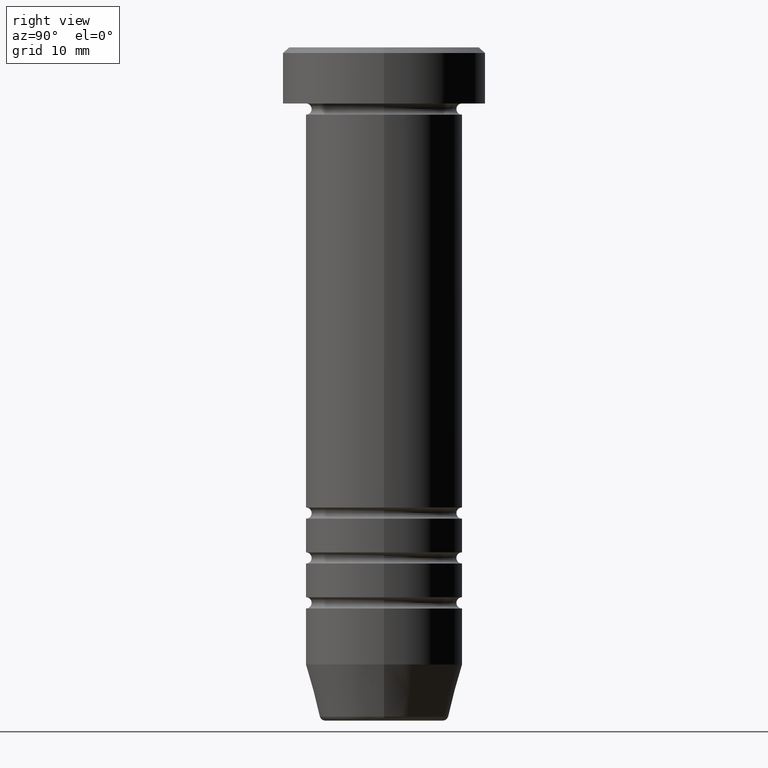
[diagram: clean part render]
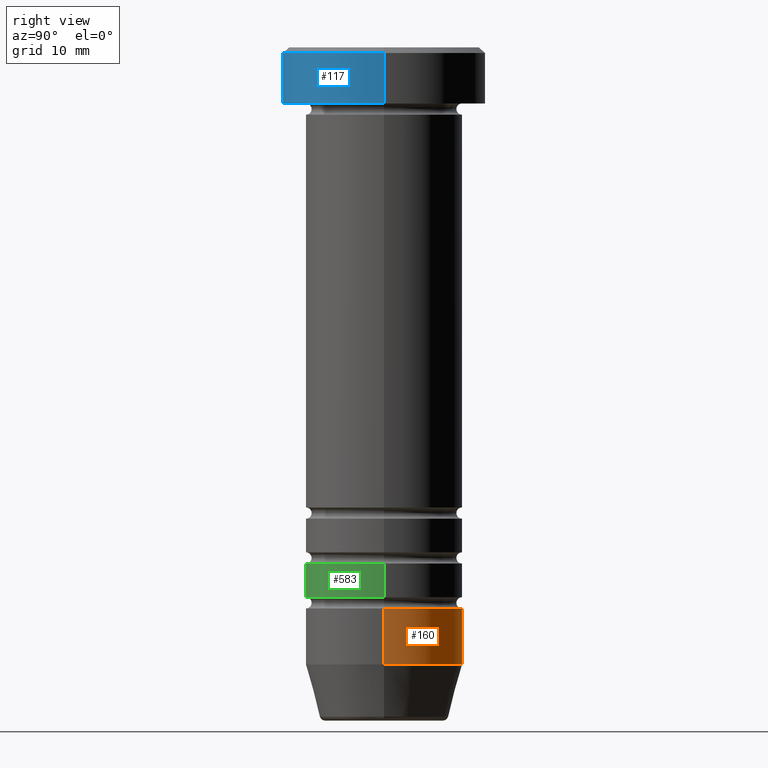
[diagram: same view with three faces highlighted in distinct colors, each labeled with its STEP entity id]
A machine part, right view with three faces highlighted in distinct colors.
Their STEP definitions:

[orange] entity #160 — the highlighted cylindrical surface (partial cylindrical patch) has radius 7 mm, axis along (-0, -0, 1).
#2 = ORIENTED_EDGE ( 'NONE', *, *, #955, .T. ) ;
#10 = EDGE_CURVE ( 'NONE', #786, #341, #89, .T. ) ;
#81 = DIRECTION ( 'NONE',  ( -0.000000000000000000, -0.000000000000000000, 1.000000000000000000 ) ) ;
#87 = CARTESIAN_POINT ( 'NONE',  ( 0.000000000000000000, 0.000000000000000000, -50.00000000000000000 ) ) ;
#89 = CIRCLE ( 'NONE', #824, 7.000000000000000000 ) ;
#93 = EDGE_CURVE ( 'NONE', #786, #680, #395, .T. ) ;
#160 = ADVANCED_FACE ( 'NONE', ( #636 ), #550, .T. ) ;
#171 = LINE ( 'NONE', #1043, #974 ) ;
#267 = VERTEX_POINT ( 'NONE', #434 ) ;
#341 = VERTEX_POINT ( 'NONE', #362 ) ;
#359 = VECTOR ( 'NONE', #966, 1000.000000000000000 ) ;
#362 = CARTESIAN_POINT ( 'NONE',  ( -7.000000000000000000, 8.572527594031473190E-16, -54.99999999999999289 ) ) ;
#377 = CIRCLE ( 'NONE', #864, 7.000000000000000000 ) ;
#395 = LINE ( 'NONE', #813, #359 ) ;
#403 = DIRECTION ( 'NONE',  ( -0.000000000000000000, -0.000000000000000000, 1.000000000000000000 ) ) ;
#434 = CARTESIAN_POINT ( 'NONE',  ( -7.000000000000000000, 8.572527594031473190E-16, -50.00000000000000000 ) ) ;
#457 = EDGE_LOOP ( 'NONE', ( #712, #2, #878, #1009 ) ) ;
#461 = CARTESIAN_POINT ( 'NONE',  ( 7.000000000000000000, 0.000000000000000000, -54.99999999999999289 ) ) ;
#550 = CYLINDRICAL_SURFACE ( 'NONE', #742, 7.000000000000000000 ) ;
#581 = DIRECTION ( 'NONE',  ( -0.000000000000000000, -0.000000000000000000, 1.000000000000000000 ) ) ;
#586 = DIRECTION ( 'NONE',  ( 1.000000000000000000, 0.000000000000000000, 0.000000000000000000 ) ) ;
#636 = FACE_OUTER_BOUND ( 'NONE', #457, .T. ) ;
#680 = VERTEX_POINT ( 'NONE', #990 ) ;
#712 = ORIENTED_EDGE ( 'NONE', *, *, #10, .T. ) ;
#742 = AXIS2_PLACEMENT_3D ( 'NONE', #746, #910, #586 ) ;
#746 = CARTESIAN_POINT ( 'NONE',  ( 0.000000000000000000, 0.000000000000000000, 0.000000000000000000 ) ) ;
#786 = VERTEX_POINT ( 'NONE', #461 ) ;
#813 = CARTESIAN_POINT ( 'NONE',  ( 7.000000000000000000, 0.000000000000000000, 0.000000000000000000 ) ) ;
#824 = AXIS2_PLACEMENT_3D ( 'NONE', #911, #581, #1045 ) ;
#864 = AXIS2_PLACEMENT_3D ( 'NONE', #87, #81, #968 ) ;
#878 = ORIENTED_EDGE ( 'NONE', *, *, #930, .F. ) ;
#910 = DIRECTION ( 'NONE',  ( -0.000000000000000000, -0.000000000000000000, 1.000000000000000000 ) ) ;
#911 = CARTESIAN_POINT ( 'NONE',  ( 0.000000000000000000, 0.000000000000000000, -54.99999999999999289 ) ) ;
#930 = EDGE_CURVE ( 'NONE', #680, #267, #377, .T. ) ;
#955 = EDGE_CURVE ( 'NONE', #341, #267, #171, .T. ) ;
#966 = DIRECTION ( 'NONE',  ( -0.000000000000000000, -0.000000000000000000, 1.000000000000000000 ) ) ;
#968 = DIRECTION ( 'NONE',  ( 1.000000000000000000, 0.000000000000000000, 0.000000000000000000 ) ) ;
#974 = VECTOR ( 'NONE', #403, 1000.000000000000000 ) ;
#990 = CARTESIAN_POINT ( 'NONE',  ( 7.000000000000000000, 0.000000000000000000, -50.00000000000000000 ) ) ;
#1009 = ORIENTED_EDGE ( 'NONE', *, *, #93, .F. ) ;
#1043 = CARTESIAN_POINT ( 'NONE',  ( -7.000000000000000000, 8.572527594031473190E-16, 0.000000000000000000 ) ) ;
#1045 = DIRECTION ( 'NONE',  ( 1.000000000000000000, 0.000000000000000000, 0.000000000000000000 ) ) ;

[blue] entity #117 — the highlighted cylindrical surface (partial cylindrical patch) has radius 9 mm, axis along (-0, -0, 1).
#1 = CARTESIAN_POINT ( 'NONE',  ( 0.000000000000000000, 0.000000000000000000, -0.5000000000000056621 ) ) ;
#51 = ORIENTED_EDGE ( 'NONE', *, *, #353, .T. ) ;
#117 = ADVANCED_FACE ( 'NONE', ( #983 ), #733, .T. ) ;
#207 = EDGE_LOOP ( 'NONE', ( #1017, #675, #51, #839 ) ) ;
#244 = AXIS2_PLACEMENT_3D ( 'NONE', #608, #941, #882 ) ;
#245 = DIRECTION ( 'NONE',  ( -0.000000000000000000, -0.000000000000000000, 1.000000000000000000 ) ) ;
#325 = DIRECTION ( 'NONE',  ( 1.000000000000000000, 0.000000000000000000, 0.000000000000000000 ) ) ;
#328 = AXIS2_PLACEMENT_3D ( 'NONE', #970, #245, #562 ) ;
#353 = EDGE_CURVE ( 'NONE', #556, #875, #1010, .T. ) ;
#433 = EDGE_CURVE ( 'NONE', #875, #1030, #773, .T. ) ;
#451 = LINE ( 'NONE', #571, #1040 ) ;
#500 = CARTESIAN_POINT ( 'NONE',  ( 9.000000000000000000, 0.000000000000000000, 0.000000000000000000 ) ) ;
#509 = AXIS2_PLACEMENT_3D ( 'NONE', #1, #973, #325 ) ;
#556 = VERTEX_POINT ( 'NONE', #794 ) ;
#562 = DIRECTION ( 'NONE',  ( 1.000000000000000000, 0.000000000000000000, 0.000000000000000000 ) ) ;
#571 = CARTESIAN_POINT ( 'NONE',  ( -9.000000000000000000, 1.102182119232617714E-15, 0.000000000000000000 ) ) ;
#608 = CARTESIAN_POINT ( 'NONE',  ( 0.000000000000000000, 0.000000000000000000, -5.000000000000000000 ) ) ;
#643 = CARTESIAN_POINT ( 'NONE',  ( -9.000000000000000000, 1.102182119232617714E-15, -0.5000000000000056621 ) ) ;
#672 = EDGE_CURVE ( 'NONE', #886, #1030, #451, .T. ) ;
#673 = DIRECTION ( 'NONE',  ( -0.000000000000000000, -0.000000000000000000, 1.000000000000000000 ) ) ;
#675 = ORIENTED_EDGE ( 'NONE', *, *, #738, .T. ) ;
#706 = CIRCLE ( 'NONE', #244, 9.000000000000000000 ) ;
#733 = CYLINDRICAL_SURFACE ( 'NONE', #328, 9.000000000000000000 ) ;
#736 = DIRECTION ( 'NONE',  ( -0.000000000000000000, -0.000000000000000000, 1.000000000000000000 ) ) ;
#738 = EDGE_CURVE ( 'NONE', #886, #556, #706, .T. ) ;
#773 = CIRCLE ( 'NONE', #509, 9.000000000000000000 ) ;
#794 = CARTESIAN_POINT ( 'NONE',  ( 9.000000000000000000, 0.000000000000000000, -5.000000000000000000 ) ) ;
#816 = CARTESIAN_POINT ( 'NONE',  ( 9.000000000000000000, 0.000000000000000000, -0.5000000000000056621 ) ) ;
#839 = ORIENTED_EDGE ( 'NONE', *, *, #433, .T. ) ;
#875 = VERTEX_POINT ( 'NONE', #816 ) ;
#882 = DIRECTION ( 'NONE',  ( 1.000000000000000000, 0.000000000000000000, 0.000000000000000000 ) ) ;
#886 = VERTEX_POINT ( 'NONE', #901 ) ;
#901 = CARTESIAN_POINT ( 'NONE',  ( -9.000000000000000000, 1.102182119232617714E-15, -5.000000000000000000 ) ) ;
#941 = DIRECTION ( 'NONE',  ( -0.000000000000000000, -0.000000000000000000, 1.000000000000000000 ) ) ;
#970 = CARTESIAN_POINT ( 'NONE',  ( 0.000000000000000000, 0.000000000000000000, 0.000000000000000000 ) ) ;
#973 = DIRECTION ( 'NONE',  ( 0.000000000000000000, 0.000000000000000000, -1.000000000000000000 ) ) ;
#983 = FACE_OUTER_BOUND ( 'NONE', #207, .T. ) ;
#987 = VECTOR ( 'NONE', #673, 1000.000000000000000 ) ;
#1010 = LINE ( 'NONE', #500, #987 ) ;
#1017 = ORIENTED_EDGE ( 'NONE', *, *, #672, .F. ) ;
#1030 = VERTEX_POINT ( 'NONE', #643 ) ;
#1040 = VECTOR ( 'NONE', #736, 1000.000000000000000 ) ;

[green] entity #583 — the highlighted cylindrical surface (partial cylindrical patch) has radius 7 mm, axis along (-0, -0, 1).
#25 = EDGE_CURVE ( 'NONE', #716, #763, #658, .T. ) ;
#60 = CYLINDRICAL_SURFACE ( 'NONE', #92, 6.999999999999996447 ) ;
#92 = AXIS2_PLACEMENT_3D ( 'NONE', #1029, #447, #298 ) ;
#107 = DIRECTION ( 'NONE',  ( -0.000000000000000000, -0.000000000000000000, 1.000000000000000000 ) ) ;
#124 = ORIENTED_EDGE ( 'NONE', *, *, #25, .T. ) ;
#129 = CARTESIAN_POINT ( 'NONE',  ( -6.999999999999996447, 8.572527594031468259E-16, 0.000000000000000000 ) ) ;
#268 = DIRECTION ( 'NONE',  ( 1.000000000000000000, 0.000000000000000000, 0.000000000000000000 ) ) ;
#282 = FACE_OUTER_BOUND ( 'NONE', #953, .T. ) ;
#298 = DIRECTION ( 'NONE',  ( 1.000000000000000000, 0.000000000000000000, 0.000000000000000000 ) ) ;
#320 = DIRECTION ( 'NONE',  ( -0.000000000000000000, -0.000000000000000000, 1.000000000000000000 ) ) ;
#334 = ORIENTED_EDGE ( 'NONE', *, *, #349, .T. ) ;
#349 = EDGE_CURVE ( 'NONE', #605, #716, #389, .T. ) ;
#351 = DIRECTION ( 'NONE',  ( -0.000000000000000000, -0.000000000000000000, 1.000000000000000000 ) ) ;
#358 = VECTOR ( 'NONE', #320, 1000.000000000000000 ) ;
#389 = CIRCLE ( 'NONE', #597, 6.999999999999992895 ) ;
#428 = CIRCLE ( 'NONE', #690, 7.000000000000000000 ) ;
#447 = DIRECTION ( 'NONE',  ( -0.000000000000000000, -0.000000000000000000, 1.000000000000000000 ) ) ;
#452 = ORIENTED_EDGE ( 'NONE', *, *, #501, .F. ) ;
#501 = EDGE_CURVE ( 'NONE', #605, #852, #695, .T. ) ;
#539 = CARTESIAN_POINT ( 'NONE',  ( 6.999999999999992895, 0.000000000000000000, -49.00000000000000000 ) ) ;
#583 = ADVANCED_FACE ( 'NONE', ( #282 ), #60, .T. ) ;
#597 = AXIS2_PLACEMENT_3D ( 'NONE', #689, #107, #268 ) ;
#605 = VERTEX_POINT ( 'NONE', #961 ) ;
#658 = LINE ( 'NONE', #729, #358 ) ;
#667 = DIRECTION ( 'NONE',  ( 1.000000000000000000, 0.000000000000000000, 0.000000000000000000 ) ) ;
#682 = DIRECTION ( 'NONE',  ( -0.000000000000000000, -0.000000000000000000, 1.000000000000000000 ) ) ;
#689 = CARTESIAN_POINT ( 'NONE',  ( 0.000000000000000000, 0.000000000000000000, -49.00000000000000000 ) ) ;
#690 = AXIS2_PLACEMENT_3D ( 'NONE', #917, #351, #667 ) ;
#695 = LINE ( 'NONE', #129, #806 ) ;
#716 = VERTEX_POINT ( 'NONE', #539 ) ;
#729 = CARTESIAN_POINT ( 'NONE',  ( 6.999999999999996447, 0.000000000000000000, 0.000000000000000000 ) ) ;
#763 = VERTEX_POINT ( 'NONE', #1022 ) ;
#764 = ORIENTED_EDGE ( 'NONE', *, *, #1044, .F. ) ;
#793 = CARTESIAN_POINT ( 'NONE',  ( -7.000000000000000000, 8.572527594031472204E-16, -46.00000000000000711 ) ) ;
#806 = VECTOR ( 'NONE', #682, 1000.000000000000000 ) ;
#852 = VERTEX_POINT ( 'NONE', #793 ) ;
#917 = CARTESIAN_POINT ( 'NONE',  ( 0.000000000000000000, 0.000000000000000000, -46.00000000000000711 ) ) ;
#953 = EDGE_LOOP ( 'NONE', ( #452, #334, #124, #764 ) ) ;
#961 = CARTESIAN_POINT ( 'NONE',  ( -6.999999999999992895, 8.572527594031466287E-16, -49.00000000000000000 ) ) ;
#1022 = CARTESIAN_POINT ( 'NONE',  ( 7.000000000000000000, 0.000000000000000000, -46.00000000000000711 ) ) ;
#1029 = CARTESIAN_POINT ( 'NONE',  ( 0.000000000000000000, 0.000000000000000000, 0.000000000000000000 ) ) ;
#1044 = EDGE_CURVE ( 'NONE', #852, #763, #428, .T. ) ;